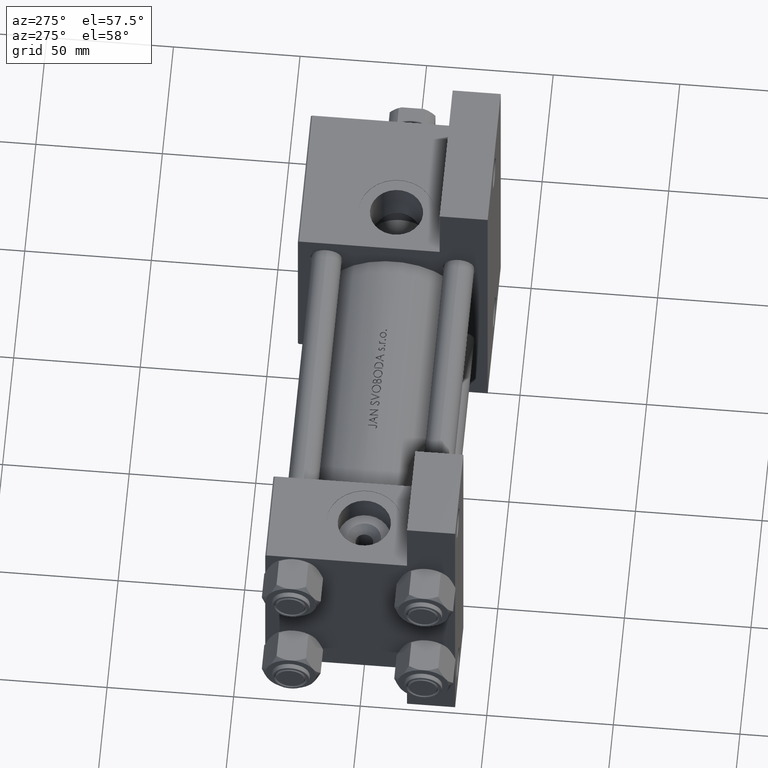
[diagram: clean part render]
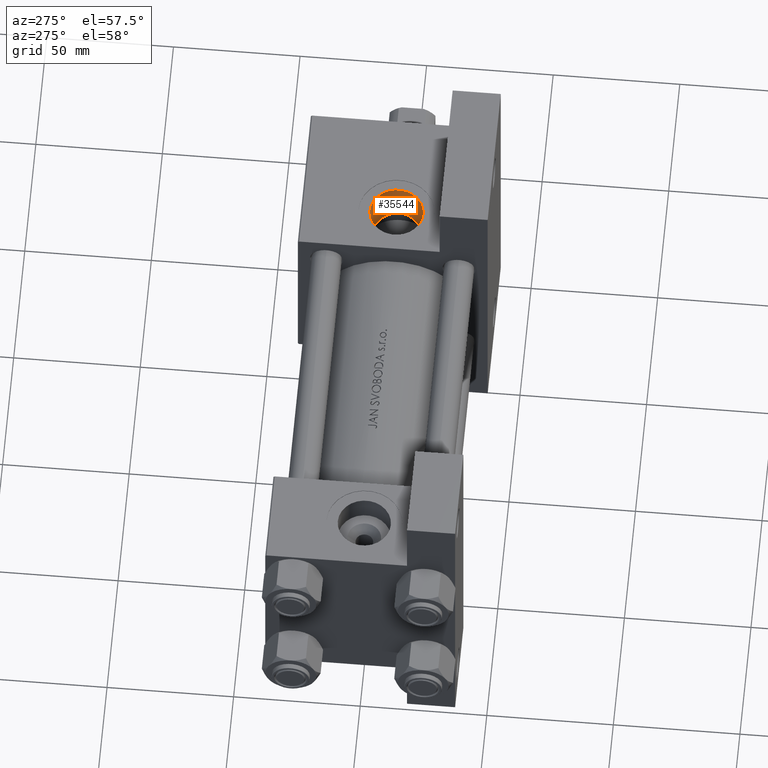
[diagram: same view with one face highlighted and labeled with its STEP entity id]
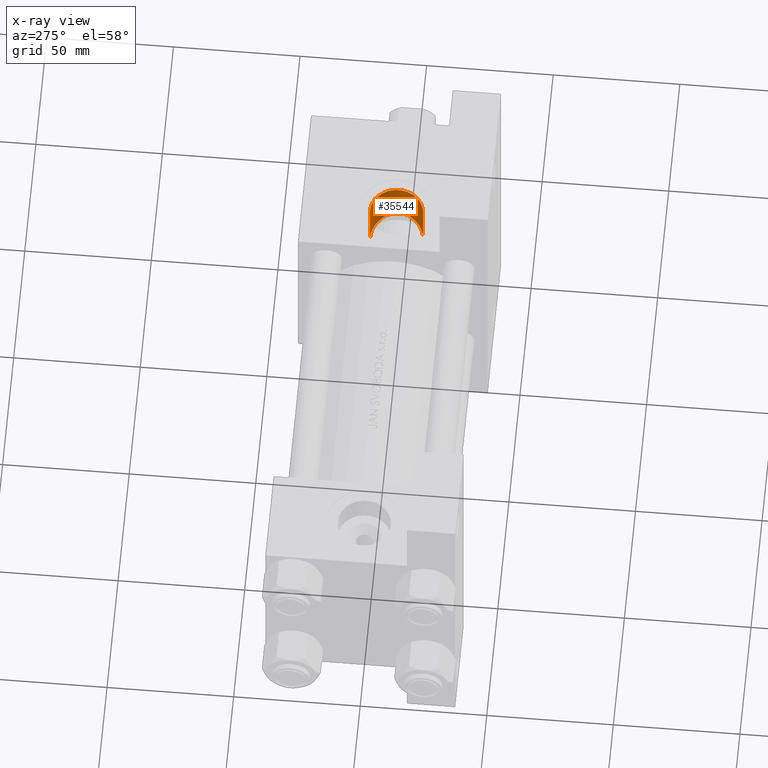
[diagram: x-ray of the same camera — body ghosted, the highlighted face saturated]
A machine part, auxiliary view. The second image highlights one B-rep face of the part: STEP entity #35544.
The next image is the same camera in x-ray: the body ghosted, the highlighted face saturated — about 0% of this face is hidden behind the body in this view.
In plain terms, the highlighted cylindrical surface (edge-blend (fillet) strip) has radius 10.48 mm, axis along (-0, -0, 1).
Its self-contained STEP definition (entity closure, byte-faithful):
#512 = CARTESIAN_POINT ( 'NONE',  ( 164.3524141148300828, -17.90669148670408362, -10.47999999999997556 ) ) ;
#966 = DIRECTION ( 'NONE',  ( 0.000000000000000000, 0.000000000000000000, -1.000000000000000000 ) ) ;
#1008 = CARTESIAN_POINT ( 'NONE',  ( 166.7750123670571440, -18.09812027575558702, -10.12979723076933425 ) ) ;
#1254 = CARTESIAN_POINT ( 'NONE',  ( 165.4044395936602996, -17.95581939429250085, -10.39141979412303840 ) ) ;
#1498 = CARTESIAN_POINT ( 'NONE',  ( 174.4015008588858677, -20.48626732390679805, -1.327331865308766901 ) ) ;
#2964 = CARTESIAN_POINT ( 'NONE',  ( 163.9999999999999716, 37.50100000000000477, -10.47999999999997556 ) ) ;
#3707 = VERTEX_POINT ( 'NONE', #7544 ) ;
#4257 = CARTESIAN_POINT ( 'NONE',  ( 171.8913372837818940, -19.47582360453931116, -6.904560610471913940 ) ) ;
#4761 = CARTESIAN_POINT ( 'NONE',  ( 172.3225662003737853, -19.64111042044597966, -6.378170050295204341 ) ) ;
#5013 = CARTESIAN_POINT ( 'NONE',  ( 174.4669051482524367, -20.50255402113294068, -0.6300211231001662249 ) ) ;
#5209 = B_SPLINE_CURVE_WITH_KNOTS ( 'NONE', 3,
 ( #38886, #23447, #24194, #42124, #31409, #42855, #12224, #12718, #8734, #23944, #12476, #15968, #35153, #46589, #23195, #38389, #27431, #34895, #27932, #35649, #39137, #31163, #39383, #8000, #5013, #1498, #8489, #5259, #20453, #16708, #27182, #11732, #23698, #20206, #4761, #4257, #26933, #19958, #19458, #8245, #35399, #34654, #1008, #38637, #1254, #42372, #512, #16213 ),
 .UNSPECIFIED., .F., .F.,
 ( 4, 2, 2, 2, 2, 2, 2, 2, 2, 2, 2, 2, 2, 2, 2, 2, 2, 2, 2, 2, 2, 2, 2, 4 ),
 ( 0.03337172289375579803, 0.03441233523662728944, 0.03545294757949878778, 0.03753417226524177058, 0.03961539695098476033, 0.04169662163672774313, 0.04377784632247073981, 0.04481845866534223122, 0.04585907100821372262, 0.04794029569395671930, 0.04898090803682821071, 0.05002152037969970211, 0.05106213272257120045, 0.05210274506544269879, 0.05418396975118568160, 0.05522458209405717994, 0.05626519443692867134, 0.05730580677980016968, 0.05834641912267166108, 0.06042764380841469940, 0.06250886849415773772, 0.06459009317990078991, 0.06563070552277235070, 0.06667131786564391149 ),
 .UNSPECIFIED. ) ;
#5259 = CARTESIAN_POINT ( 'NONE',  ( 174.1488622720015087, -20.39261420473474473, -2.705221023230776289 ) ) ;
#7544 = CARTESIAN_POINT ( 'NONE',  ( 163.9999999999999716, -17.31154528053461306, 10.47999999999999154 ) ) ;
#8000 = CARTESIAN_POINT ( 'NONE',  ( 174.4819445000525491, -20.50178181377810915, -0.2822101851753042179 ) ) ;
#8245 = CARTESIAN_POINT ( 'NONE',  ( 169.2983228447828310, -18.62849765410346947, -9.067371222007592380 ) ) ;
#8489 = CARTESIAN_POINT ( 'NONE',  ( 174.3507038963579134, -20.46901633175582447, -1.677836523642098010 ) ) ;
#8734 = CARTESIAN_POINT ( 'NONE',  ( 169.2787600379285777, -18.12953982762253347, 9.078379935655647159 ) ) ;
#8939 = CARTESIAN_POINT ( 'NONE',  ( 163.9999999999999716, 37.50100000000000477, 9.974746723040443104E-15 ) ) ;
#9314 = CARTESIAN_POINT ( 'NONE',  ( 163.9999999999999716, -37.29999999999999716, 10.47999999999998977 ) ) ;
#9540 = AXIS2_PLACEMENT_3D ( 'NONE', #8939, #31369, #966 ) ;
#11732 = CARTESIAN_POINT ( 'NONE',  ( 173.0783182432222418, -19.94519646484593167, -5.247152792081113404 ) ) ;
#12224 = CARTESIAN_POINT ( 'NONE',  ( 167.4159050215025957, -17.65012615064442869, 9.931528811289364711 ) ) ;
#12236 = DIRECTION ( 'NONE',  ( -0.000000000000000000, -1.000000000000000000, -8.673617379884036705E-17 ) ) ;
#12476 = CARTESIAN_POINT ( 'NONE',  ( 170.9208345979153876, -18.70786800614511236, 7.898040897294844598 ) ) ;
#12718 = CARTESIAN_POINT ( 'NONE',  ( 168.6848851208463316, -17.95378683072778259, 9.399761861338273405 ) ) ;
#13382 = EDGE_CURVE ( 'NONE', #43426, #36238, #33122, .T. ) ;
#13459 = ORIENTED_EDGE ( 'NONE', *, *, #17274, .T. ) ;
#15747 = VERTEX_POINT ( 'NONE', #9314 ) ;
#15968 = CARTESIAN_POINT ( 'NONE',  ( 171.8679744497729018, -19.10325731143032968, 6.954996736502839561 ) ) ;
#16213 = CARTESIAN_POINT ( 'NONE',  ( 163.9999999999999716, -17.90669148670408362, -10.47999999999998089 ) ) ;
#16708 = CARTESIAN_POINT ( 'NONE',  ( 173.5516556862485515, -20.14238090880650134, -4.326202217588882348 ) ) ;
#16940 = DIRECTION ( 'NONE',  ( 0.000000000000000000, 0.000000000000000000, -1.000000000000000000 ) ) ;
#17274 = EDGE_CURVE ( 'NONE', #36238, #15747, #22003, .T. ) ;
#18013 = AXIS2_PLACEMENT_3D ( 'NONE', #43823, #48284, #16940 ) ;
#18659 = DIRECTION ( 'NONE',  ( -0.000000000000000000, -1.000000000000000000, -8.673617379884036705E-17 ) ) ;
#18801 = VECTOR ( 'NONE', #18659, 1000.000000000000000 ) ;
#19458 = CARTESIAN_POINT ( 'NONE',  ( 170.4217440813015116, -18.95863385658994815, -8.309672003124298101 ) ) ;
#19958 = CARTESIAN_POINT ( 'NONE',  ( 170.9416544847750856, -19.13207627753017093, -7.880695095096321268 ) ) ;
#20206 = CARTESIAN_POINT ( 'NONE',  ( 172.5247630629396554, -19.72096722719661344, -6.105281524917115732 ) ) ;
#20358 = EDGE_CURVE ( 'NONE', #3707, #15747, #42131, .T. ) ;
#20453 = CARTESIAN_POINT ( 'NONE',  ( 173.9485359727863454, -20.30891902702526153, -3.366903607565236989 ) ) ;
#22003 = CIRCLE ( 'NONE', #18013, 10.47999999999998622 ) ;
#23195 = CARTESIAN_POINT ( 'NONE',  ( 173.0415136392023783, -19.66186875787549226, 5.310054482731721315 ) ) ;
#23447 = CARTESIAN_POINT ( 'NONE',  ( 164.3470210746792759, -17.31154528053460595, 10.47999999999999510 ) ) ;
#23698 = CARTESIAN_POINT ( 'NONE',  ( 172.9026386617618130, -19.87300753805846654, -5.539771893847126094 ) ) ;
#23944 = CARTESIAN_POINT ( 'NONE',  ( 170.3953719826939732, -18.50579674927558571, 8.329556230503516900 ) ) ;
#24150 = FACE_OUTER_BOUND ( 'NONE', #31726, .T. ) ;
#24194 = CARTESIAN_POINT ( 'NONE',  ( 164.6954312938289036, -17.32248566803110990, 10.46281023584331393 ) ) ;
#25554 = ORIENTED_EDGE ( 'NONE', *, *, #49006, .T. ) ;
#26933 = CARTESIAN_POINT ( 'NONE',  ( 171.6611621740132705, -19.38999619374664363, -7.159076384942104632 ) ) ;
#27182 = CARTESIAN_POINT ( 'NONE',  ( 173.4025389929008441, -20.07976061505709708, -4.641199740976985844 ) ) ;
#27431 = CARTESIAN_POINT ( 'NONE',  ( 173.5136165929027925, -19.90621515629138827, 4.408684660160838042 ) ) ;
#27932 = CARTESIAN_POINT ( 'NONE',  ( 174.1175830810125831, -20.24111318549747551, 2.820020607438576743 ) ) ;
#31163 = CARTESIAN_POINT ( 'NONE',  ( 174.4583245133796936, -20.46430137750835954, 0.7579182357777466406 ) ) ;
#31369 = DIRECTION ( 'NONE',  ( -0.000000000000000000, -1.000000000000000000, -8.673617379884036705E-17 ) ) ;
#31409 = CARTESIAN_POINT ( 'NONE',  ( 165.7410054315663501, -17.39963274831551132, 10.34017078318249361 ) ) ;
#31726 = EDGE_LOOP ( 'NONE', ( #32492, #25554, #45366, #13459 ) ) ;
#32492 = ORIENTED_EDGE ( 'NONE', *, *, #20358, .F. ) ;
#32792 = CARTESIAN_POINT ( 'NONE',  ( 163.9999999999999716, -17.90669148670408362, -10.47999999999998089 ) ) ;
#33122 = LINE ( 'NONE', #2964, #18801 ) ;
#34654 = CARTESIAN_POINT ( 'NONE',  ( 167.4291236246858432, -18.20648317701849095, -9.926633415679276595 ) ) ;
#34895 = CARTESIAN_POINT ( 'NONE',  ( 173.9112922687107812, -20.12166452589491428, 3.472274471029884957 ) ) ;
#35153 = CARTESIAN_POINT ( 'NONE',  ( 172.2943842801269909, -19.29805340160766747, 6.441284550439725365 ) ) ;
#35399 = CARTESIAN_POINT ( 'NONE',  ( 168.6885837709134535, -18.47081169218747831, -9.397559365377063045 ) ) ;
#35407 = CARTESIAN_POINT ( 'NONE',  ( 163.9999999999999716, 37.50100000000000477, 10.47999999999999687 ) ) ;
#35544 = ADVANCED_FACE ( 'NONE', ( #24150 ), #43064, .F. ) ;
#35649 = CARTESIAN_POINT ( 'NONE',  ( 174.3311065042815642, -20.37409322011633606, 1.794586109409245456 ) ) ;
#36238 = VERTEX_POINT ( 'NONE', #40624 ) ;
#38389 = CARTESIAN_POINT ( 'NONE',  ( 173.3662177968320179, -19.82832408839749760, 4.713768309937338863 ) ) ;
#38637 = CARTESIAN_POINT ( 'NONE',  ( 165.7534701870718834, -17.98521153983802634, -10.33810977386607100 ) ) ;
#38886 = CARTESIAN_POINT ( 'NONE',  ( 163.9999999999999716, -17.31154528053461306, 10.47999999999999154 ) ) ;
#39137 = CARTESIAN_POINT ( 'NONE',  ( 174.3852102648228310, -20.41012014665353291, 1.448585321857994712 ) ) ;
#39383 = CARTESIAN_POINT ( 'NONE',  ( 174.4776551375225893, -20.48265569949337461, 0.4117595292702391774 ) ) ;
#40424 = VECTOR ( 'NONE', #12236, 1000.000000000000000 ) ;
#40624 = CARTESIAN_POINT ( 'NONE',  ( 163.9999999999999716, -37.29999999999999716, -10.47999999999998266 ) ) ;
#42124 = CARTESIAN_POINT ( 'NONE',  ( 165.3951252308203266, -17.36667489365846606, 10.39267281819420319 ) ) ;
#42131 = LINE ( 'NONE', #35407, #40424 ) ;
#42372 = CARTESIAN_POINT ( 'NONE',  ( 164.7047145583874510, -17.91665127801143953, -10.46219065497899692 ) ) ;
#42855 = CARTESIAN_POINT ( 'NONE',  ( 166.7588417203788538, -17.52693762274574851, 10.13402779325157077 ) ) ;
#43064 = CYLINDRICAL_SURFACE ( 'NONE', #9540, 10.47999999999998622 ) ;
#43426 = VERTEX_POINT ( 'NONE', #32792 ) ;
#43823 = CARTESIAN_POINT ( 'NONE',  ( 163.9999999999999716, -37.29999999999999716, 3.486794186713383443E-15 ) ) ;
#45366 = ORIENTED_EDGE ( 'NONE', *, *, #13382, .T. ) ;
#46589 = CARTESIAN_POINT ( 'NONE',  ( 172.8632463434475142, -19.57285682509593272, 5.602446212762891342 ) ) ;
#48284 = DIRECTION ( 'NONE',  ( 0.000000000000000000, -1.000000000000000000, -8.673617379884036705E-17 ) ) ;
#49006 = EDGE_CURVE ( 'NONE', #3707, #43426, #5209, .T. ) ;